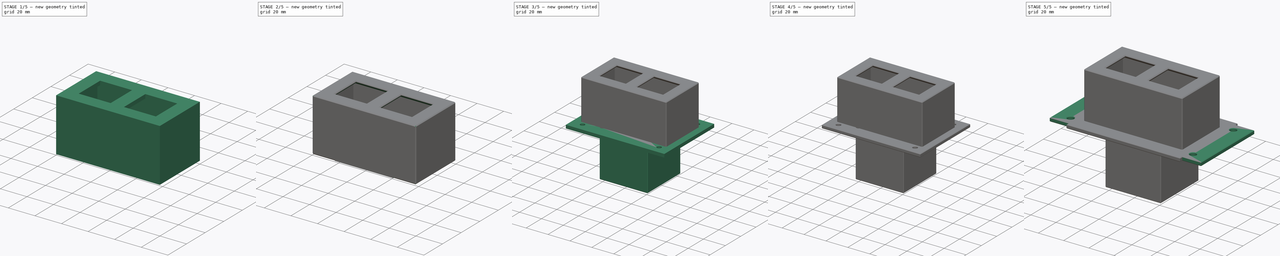
[diagram: build sequence overview — one tinted view per stage of 5, left to right]
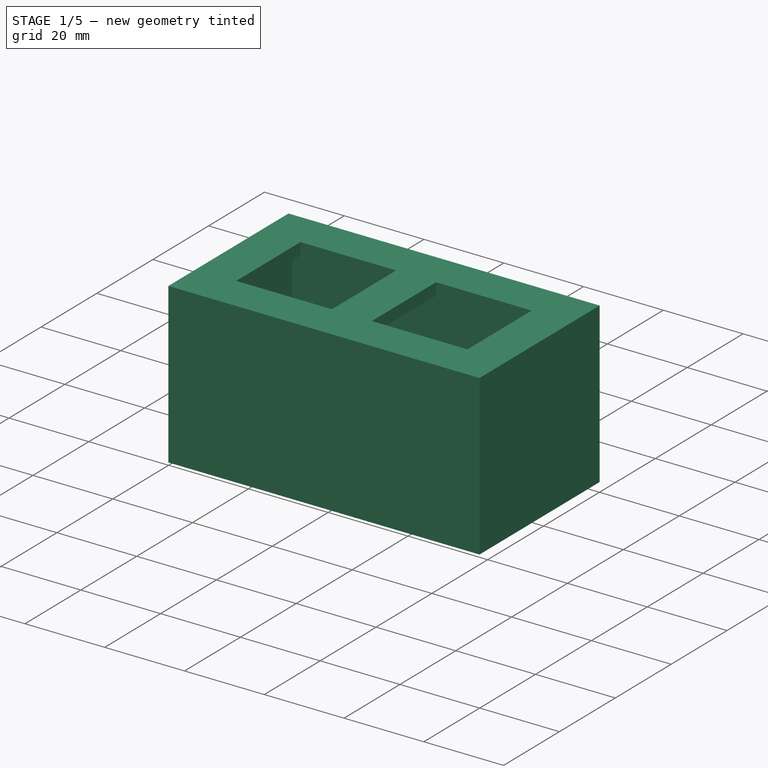
[diagram: stage 1 of 5 — iso view after this stage's code; geometry added in this stage tinted green]
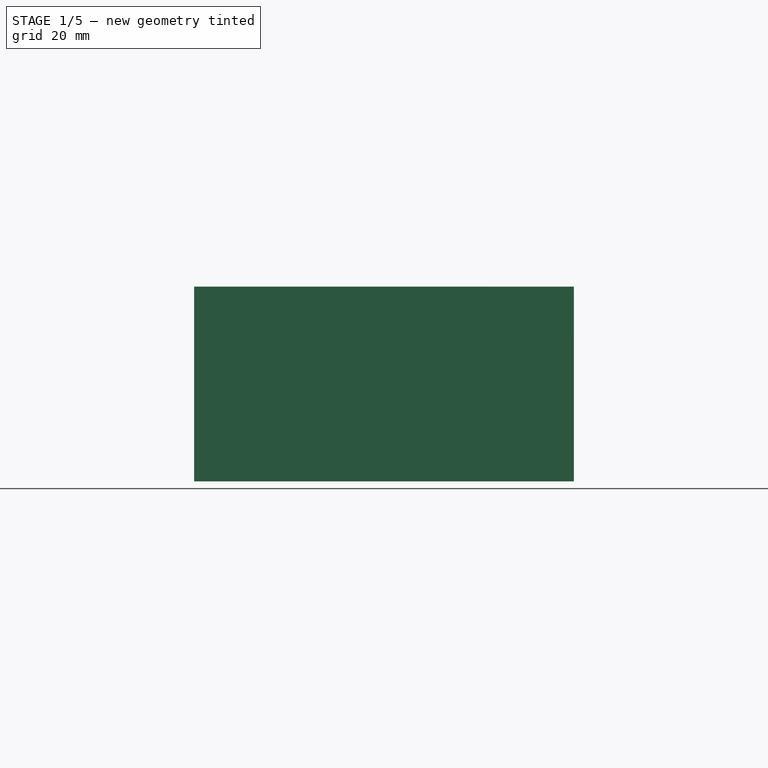
[diagram: stage 1 of 5 — front view after this stage's code; geometry added in this stage tinted green]
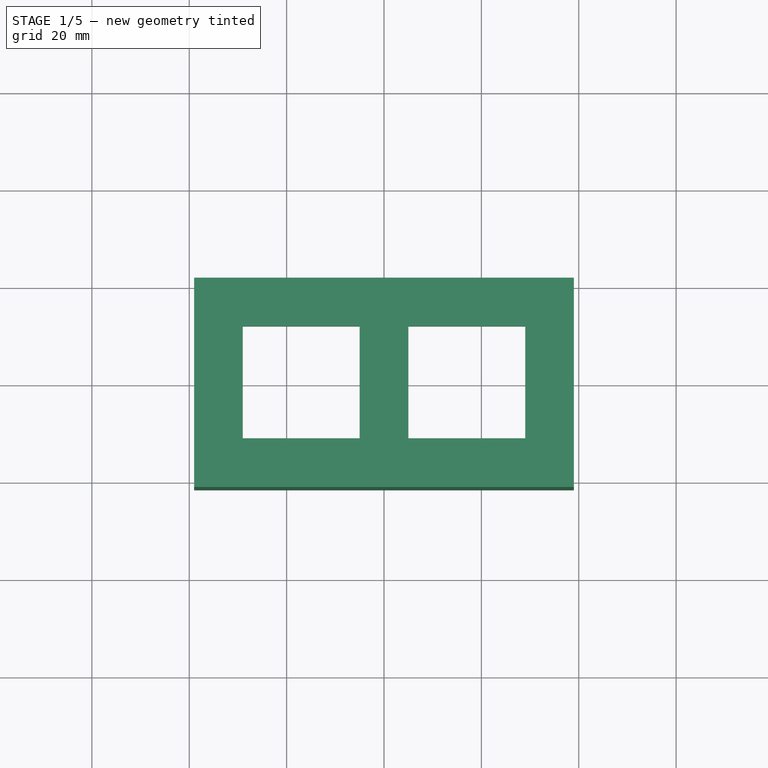
[diagram: stage 1 of 5 — top view after this stage's code; geometry added in this stage tinted green]
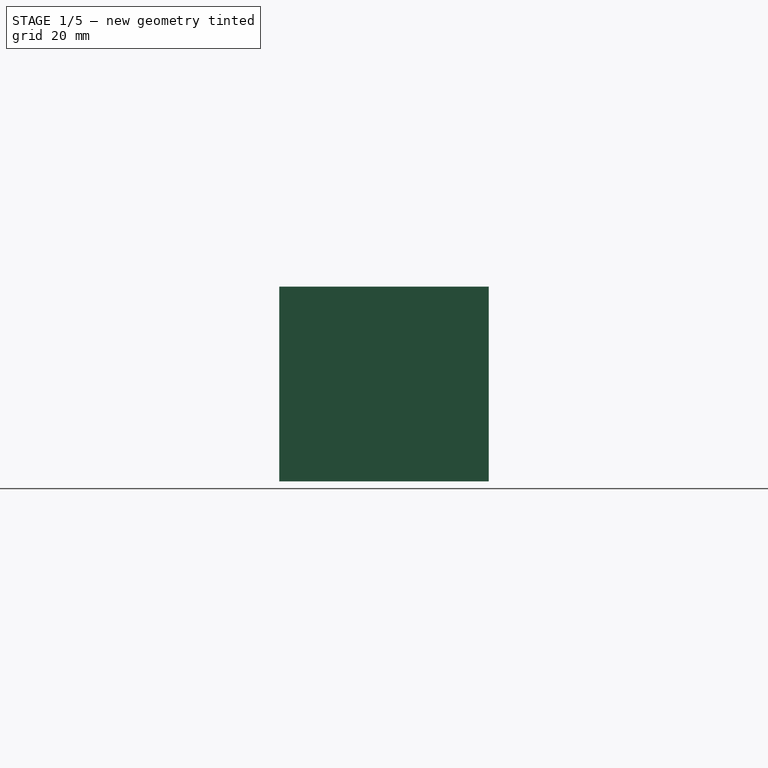
[diagram: stage 1 of 5 — right view after this stage's code; geometry added in this stage tinted green]
FCSTD DOCUMENT  (FreeCAD 0.22R36677 (Git))
Label: top right panel
License: All rights reserved
LicenseURL: http://en.wikipedia.org/wiki/All_rights_reserved
objects: Sketcher::SketchObject×7, PartDesign::Chamfer×7, PartDesign::Pad×6, PartDesign::Body×4, Spreadsheet::Sheet×1, PartDesign::Fillet×1, PartDesign::Thickness×1, PartDesign::Pocket×1
note: 43 computed .brp shape members not serialized (recipe doc carries the construction recipe); baked Part::Feature solids carry a one-line shape summary decoded from their .brp

FEATURE [PartDesign::Body] Body003  label="bottom right002"
  Group = -> [Sketch006,Pad007,Sketch007,Pad008,Chamfer007,Chamfer008]
  Origin = -> Origin003
  Tip = -> Chamfer008
FEATURE [Sketcher::SketchObject] Sketch008
  AttachmentSupport = -> [XY_Plane001]
  FullyConstrained = true
  MapMode = 5
  expr: Constraints[7] = <<q>>.power_socket_width
  expr: Constraints[8] = <<q>>.power_socket_height
  sketch-geometry (8):
    g0: LineSegment StartX=-29 StartY=11.5 StartZ=0 EndX=-29 EndY=-11.5 EndZ=0
    g1: LineSegment StartX=-29 StartY=-11.5 StartZ=0 EndX=-5 EndY=-11.5 EndZ=0
    g2: LineSegment StartX=-5 StartY=-11.5 StartZ=0 EndX=-5 EndY=11.5 EndZ=0
    g3: LineSegment StartX=-5 StartY=11.5 StartZ=0 EndX=-29 EndY=11.5 EndZ=0
    g4: LineSegment StartX=5 StartY=11.5 StartZ=0 EndX=5 EndY=-11.5 EndZ=0
    g5: LineSegment StartX=5 StartY=-11.5 StartZ=0 EndX=29 EndY=-11.5 EndZ=0
    g6: LineSegment StartX=29 StartY=-11.5 StartZ=0 EndX=29 EndY=11.5 EndZ=0
    g7: LineSegment StartX=29 StartY=11.5 StartZ=0 EndX=5 EndY=11.5 EndZ=0
  constraints (21):
    c: Coincident(g0,g1)
    c: Coincident(g1,g2)
    c: Coincident(g2,g3)
    c: Coincident(g3,g0)
    c: Vertical(g0)
    c: Horizontal(g3)
    c: Symmetric(g2,g1,g-1)
    c: DistanceX(g3,g3) = 24
    c: DistanceY(g2,g2) = 23
    c: Coincident(g4,g5)
    c: Coincident(g5,g6)
    c: Coincident(g6,g7)
    c: Coincident(g7,g4)
    c: Horizontal(g7)
    c: DistanceX(g7,g7) = 24
    c: DistanceY(g6,g6) = 23
    c: Symmetric(g4,g4,g-1)
    c: Symmetric(g2,g4,g-2)
    c: DistanceX(g2,g4) = 10
    c: Vertical(g6)
    c: Horizontal(g1)
FEATURE [PartDesign::Pad] Pad009
  Direction = (0,0,1)
  Length = 40
  Length2 = 10
  Profile = -> Sketch001
  ReferenceAxis = -> Sketch001 [N_Axis]
  Suppressed = false
  Type = 0
FEATURE [PartDesign::Thickness] Thickness
  Base = -> Pad009 [Face5]
  BaseFeature = -> Pad009
  Intersection = false
  Join = 0
  Mode = 0
  Reversed = true
  SupportTransform = false
  Suppressed = false
  Value = 3
FEATURE [PartDesign::Pocket] Pocket
  BaseFeature = -> Thickness
  Direction = (0,0,-1)
  Length = 5
  Length2 = 5
  Profile = -> Sketch008
  ReferenceAxis = -> Sketch008 [N_Axis]
  Reversed = true
  Suppressed = false
  Type = 1
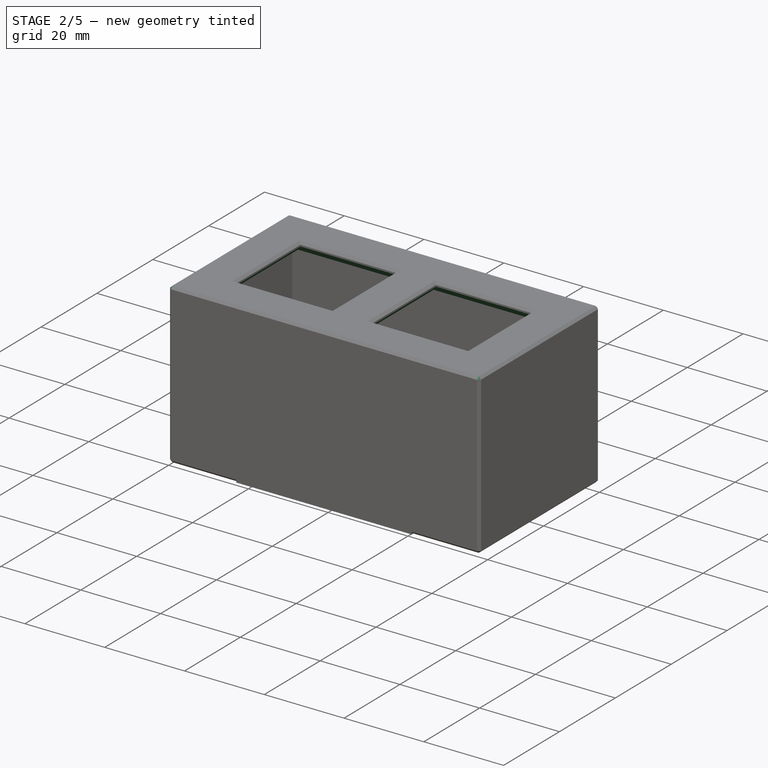
[diagram: stage 2 of 5 — iso view after this stage's code; geometry added in this stage tinted green]
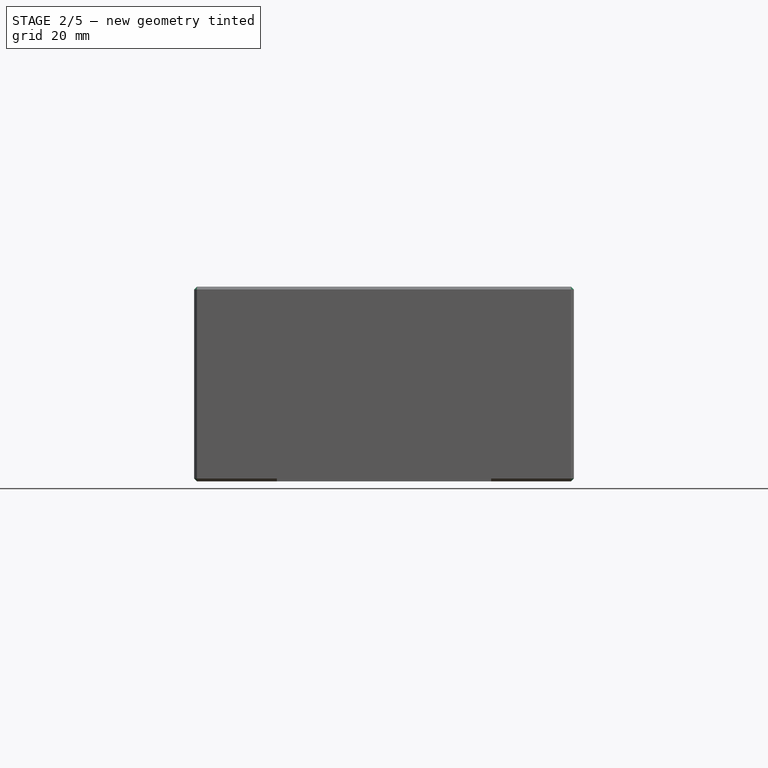
[diagram: stage 2 of 5 — front view after this stage's code; geometry added in this stage tinted green]
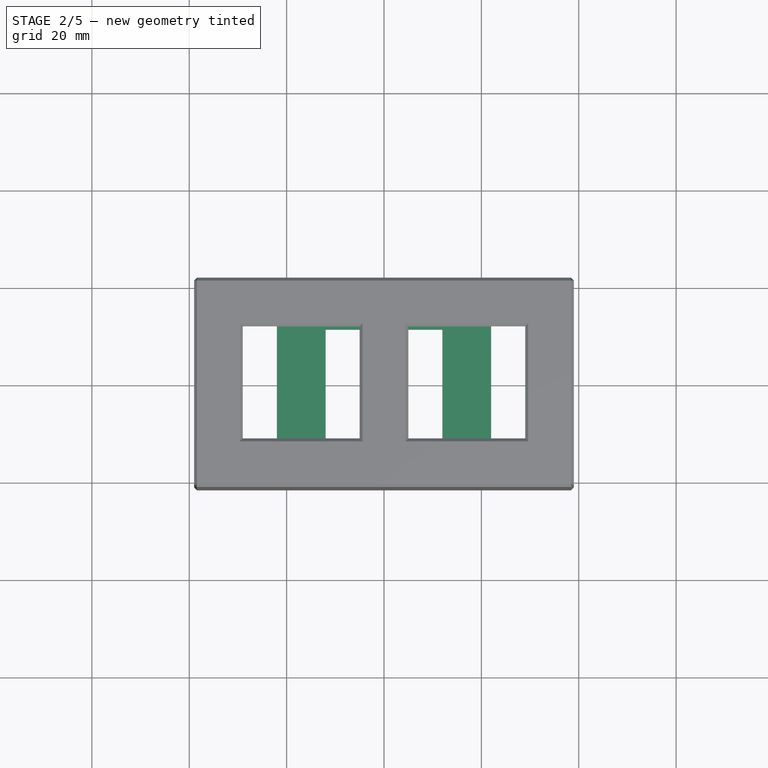
[diagram: stage 2 of 5 — top view after this stage's code; geometry added in this stage tinted green]
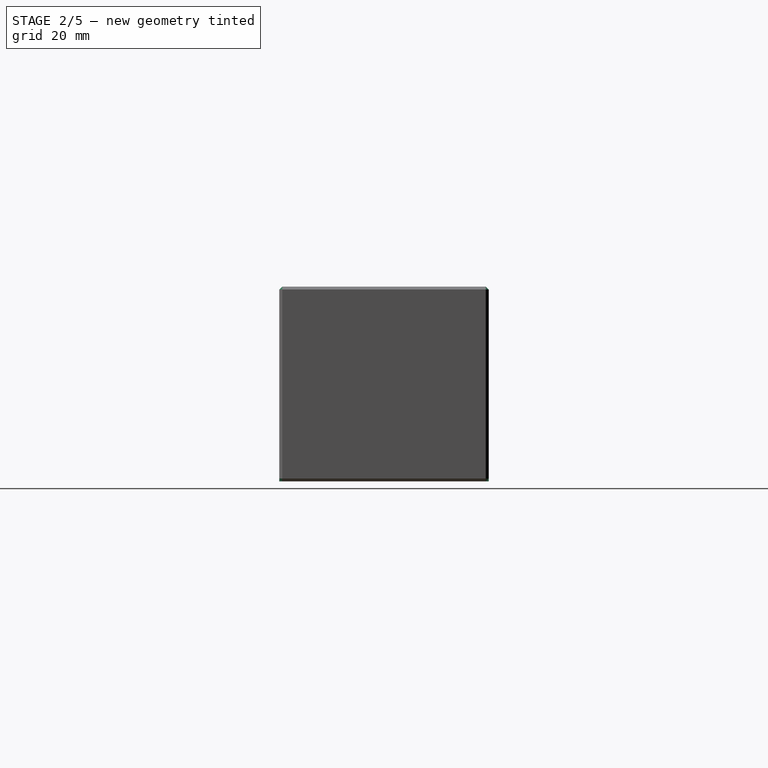
[diagram: stage 2 of 5 — right view after this stage's code; geometry added in this stage tinted green]
FEATURE [PartDesign::Body] Body002  label="bottom right001"
  Group = -> [Sketch003,Pad003,Chamfer003,Sketch004,Pad004,Chamfer004,Fillet001]
  Origin = -> Origin002
  Tip = -> Fillet001
FEATURE [Sketcher::SketchObject] Sketch006
  AttachmentSupport = -> [XY_Plane003]
  FullyConstrained = true
  MapMode = 5
  expr: Constraints[7] = <<q>>.power_socket_width
  expr: Constraints[8] = <<q>>.power_socket_height
  sketch-geometry (8):
    g0: LineSegment StartX=-12 StartY=11.5 StartZ=0 EndX=-12 EndY=-11.5 EndZ=0
    g1: LineSegment StartX=-12 StartY=-11.5 StartZ=0 EndX=12 EndY=-11.5 EndZ=0
    g2: LineSegment StartX=12 StartY=-11.5 StartZ=0 EndX=12 EndY=11.5 EndZ=0
    g3: LineSegment StartX=12 StartY=11.5 StartZ=0 EndX=-12 EndY=11.5 EndZ=0
    g4: LineSegment StartX=-22 StartY=21.5 StartZ=0 EndX=-22 EndY=-21.5 EndZ=0
    g5: LineSegment StartX=-22 StartY=-21.5 StartZ=0 EndX=22 EndY=-21.5 EndZ=0
    g6: LineSegment StartX=22 StartY=-21.5 StartZ=0 EndX=22 EndY=21.5 EndZ=0
    g7: LineSegment StartX=22 StartY=21.5 StartZ=0 EndX=-22 EndY=21.5 EndZ=0
  constraints (21):
    c: Coincident(g0,g1)
    c: Coincident(g1,g2)
    c: Coincident(g2,g3)
    c: Coincident(g3,g0)
    c: Vertical(g0)
    c: Horizontal(g3)
    c: Symmetric(g2,g1,g-1)
    c: DistanceX(g3,g3) = 24
    c: DistanceY(g2,g2) = 23
    c: Coincident(g4,g5)
    c: Coincident(g5,g6)
    c: Coincident(g6,g7)
    c: Coincident(g7,g4)
    c: Vertical(g4)
    c: Vertical(g6)
    c: Horizontal(g5)
    c: Horizontal(g7)
    c: Symmetric(g0,g2,g-1)
    c: Symmetric(g6,g4,g-1)
    c: DistanceX(g2,g6) = 10
    c: DistanceY(g2,g6) = 10
FEATURE [PartDesign::Pad] Pad007
  Direction = (0,0,1)
  Length = 3
  Length2 = 10
  Profile = -> Sketch006
  ReferenceAxis = -> Sketch006 [N_Axis]
  Suppressed = false
  Type = 0
FEATURE [PartDesign::Chamfer] Chamfer009
  Angle = 45
  Base = -> Pocket [Edge44,Edge41,Edge48,Edge33,Edge40,Edge36,Edge46,Edge38]
  BaseFeature = -> Pocket
  ChamferType = 0
  FlipDirection = false
  Size = 2
  Size2 = 1
  SupportTransform = false
  Suppressed = false
  UseAllEdges = false
FEATURE [PartDesign::Chamfer] Chamfer010
  Angle = 45
  Base = -> Chamfer009 [Face27,Face4,Face11,Face10,Face13,Face12]
  BaseFeature = -> Chamfer009
  ChamferType = 0
  FlipDirection = false
  Size = 0.6
  Size2 = 1
  SupportTransform = false
  Suppressed = false
  UseAllEdges = false
FEATURE [PartDesign::Body] Body001  label="bottom right"
  Group = -> [Sketch001,Sketch008,Pad009,Thickness,Pocket,Chamfer009,Chamfer010]
  Origin = -> Origin001
  Tip = -> Chamfer010
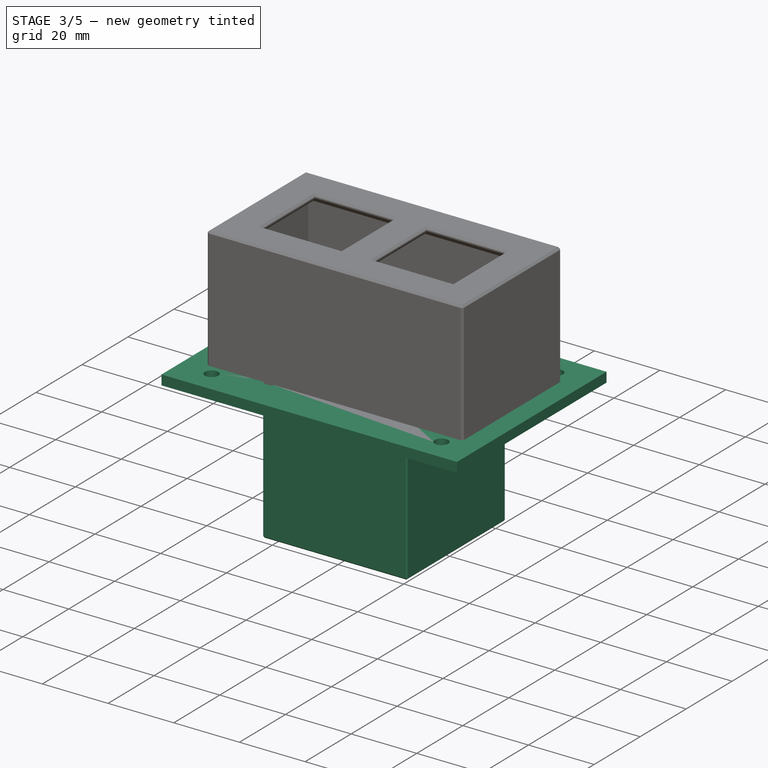
[diagram: stage 3 of 5 — iso view after this stage's code; geometry added in this stage tinted green]
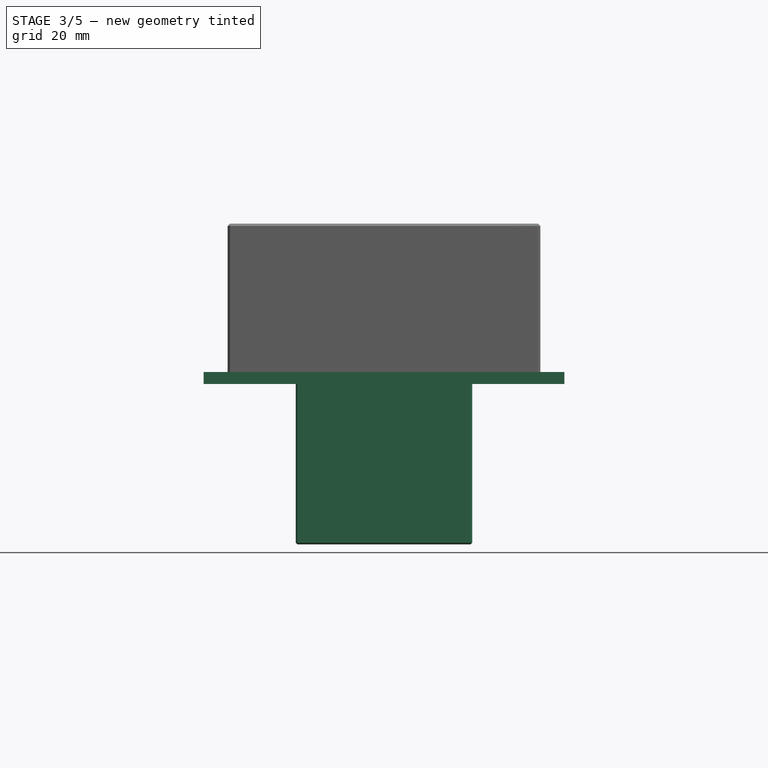
[diagram: stage 3 of 5 — front view after this stage's code; geometry added in this stage tinted green]
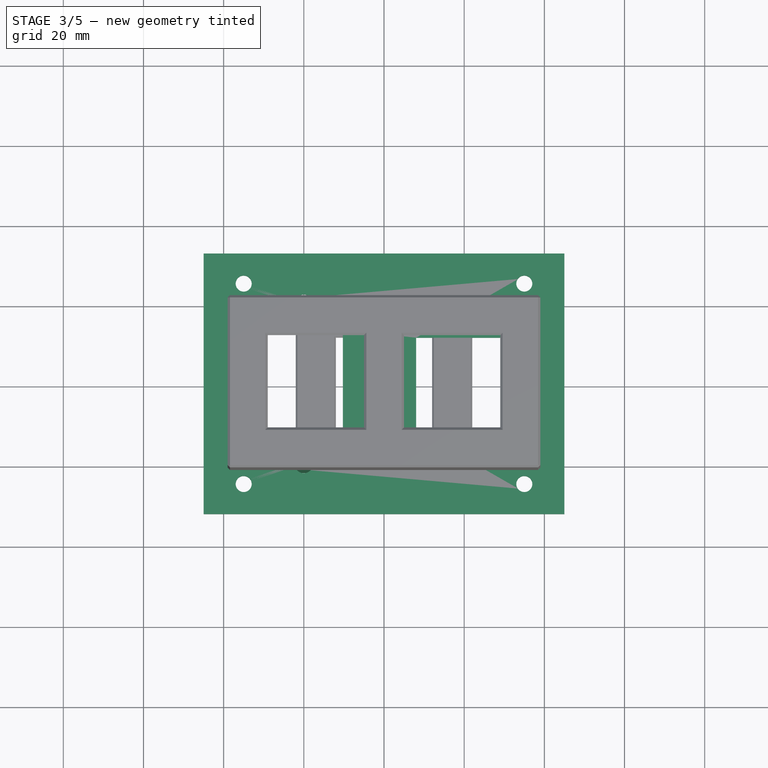
[diagram: stage 3 of 5 — top view after this stage's code; geometry added in this stage tinted green]
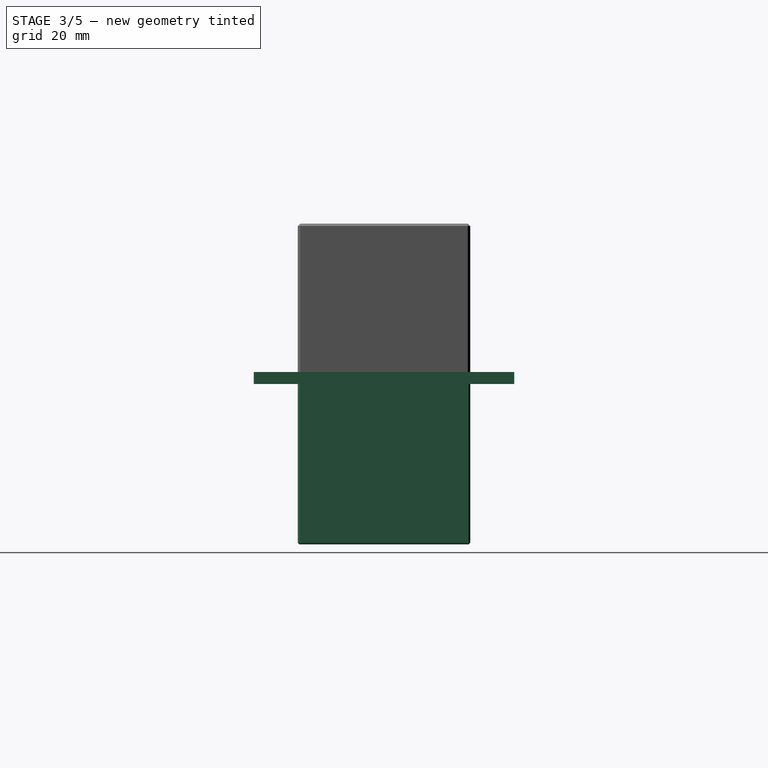
[diagram: stage 3 of 5 — right view after this stage's code; geometry added in this stage tinted green]
FEATURE [PartDesign::Body] Body  label="top right"
  Group = -> [Sketch,Pad,Chamfer]
  Origin = -> Origin
  Tip = -> Chamfer
FEATURE [Sketcher::SketchObject] Sketch001
  AttachmentSupport = -> [XY_Plane001]
  FullyConstrained = true
  MapMode = 5
  sketch-geometry (4):
    g0: LineSegment StartX=-39 StartY=21.5 StartZ=0 EndX=-39 EndY=-21.5 EndZ=0
    g1: LineSegment StartX=-39 StartY=-21.5 StartZ=0 EndX=39 EndY=-21.5 EndZ=0
    g2: LineSegment StartX=39 StartY=-21.5 StartZ=0 EndX=39 EndY=21.5 EndZ=0
    g3: LineSegment StartX=39 StartY=21.5 StartZ=0 EndX=-39 EndY=21.5 EndZ=0
  constraints (11):
    c: Coincident(g0,g1)
    c: Coincident(g1,g2)
    c: Coincident(g2,g3)
    c: Coincident(g3,g0)
    c: Vertical(g0)
    c: Vertical(g2)
    c: Horizontal(g1)
    c: Horizontal(g3)
    c: Symmetric(g0,g2,g-1)
    c: DistanceX(g3,g3) = 78
    c: DistanceY(g2,g2) = 43
FEATURE [Sketcher::SketchObject] Sketch003
  AttachmentSupport = -> [XY_Plane002]
  FullyConstrained = true
  MapMode = 5
  expr: Constraints[15] = <<q>>.power_socket_width
  expr: Constraints[16] = <<q>>.power_inlet_width
  expr: Constraints[17] = <<q>>.power_socket_height
  expr: Constraints[18] = <<q>>.power_inlet_height
  expr: Constraints[21] = <<q>>.power_inlet_screw
  expr: Constraints[22] = <<q>>.power_inlet_c2c
  sketch-geometry (24):
    g0: LineSegment StartX=-29.75 StartY=13.5 StartZ=0 EndX=-29.75 EndY=-13.5 EndZ=0
    g1: LineSegment StartX=-29.75 StartY=-13.5 StartZ=0 EndX=-10.25 EndY=-13.5 EndZ=0
    g2: LineSegment StartX=-10.25 StartY=-13.5 StartZ=0 EndX=-10.25 EndY=13.5 EndZ=0
    g3: LineSegment StartX=-10.25 StartY=13.5 StartZ=0 EndX=-29.75 EndY=13.5 EndZ=0
    g4: LineSegment StartX=8 StartY=11.5 StartZ=0 EndX=8 EndY=-11.5 EndZ=0
    g5: LineSegment StartX=8 StartY=-11.5 StartZ=0 EndX=32 EndY=-11.5 EndZ=0
    g6: LineSegment StartX=32 StartY=-11.5 StartZ=0 EndX=32 EndY=11.5 EndZ=0
    g7: LineSegment StartX=32 StartY=11.5 StartZ=0 EndX=8 EndY=11.5 EndZ=0
    g8: GeomPoint X=-20 Y=-8e-16 Z=0
    g9: Circle CenterX=-20 CenterY=20 CenterZ=0 NormalX=0 NormalY=0 NormalZ=1 AngleXU=0 Radius=2.3
    g10: Circle CenterX=-20 CenterY=-20 CenterZ=0 NormalX=0 NormalY=0 NormalZ=1 AngleXU=0 Radius=2.3
    g11: GeomPoint X=20 Y=8e-16 Z=0
    g12: LineSegment StartX=-45 StartY=32.5 StartZ=0 EndX=-45 EndY=-32.5 EndZ=0
    g13: LineSegment StartX=-45 StartY=-32.5 StartZ=0 EndX=45 EndY=-32.5 EndZ=0
    g14: LineSegment StartX=45 StartY=-32.5 StartZ=0 EndX=45 EndY=32.5 EndZ=0
    g15: LineSegment StartX=45 StartY=32.5 StartZ=0 EndX=-45 EndY=32.5 EndZ=0
    g16: LineSegment StartX=-35 StartY=25 StartZ=0 EndX=-35 EndY=-25 EndZ=0
    g17: LineSegment StartX=-35 StartY=-25 StartZ=0 EndX=35 EndY=-25 EndZ=0
    g18: LineSegment StartX=35 StartY=-25 StartZ=0 EndX=35 EndY=25 EndZ=0
    g19: LineSegment StartX=35 StartY=25 StartZ=0 EndX=-35 EndY=25 EndZ=0
    g20: Circle CenterX=35 CenterY=-25 CenterZ=0 NormalX=0 NormalY=0 NormalZ=1 AngleXU=0 Radius=2
    g21: Circle CenterX=35 CenterY=25 CenterZ=0 NormalX=0 NormalY=0 NormalZ=1 AngleXU=0 Radius=2
    g22: Circle CenterX=-35 CenterY=25 CenterZ=0 NormalX=0 NormalY=0 NormalZ=1 AngleXU=0 Radius=2
    g23: Circle CenterX=-35 CenterY=-25 CenterZ=0 NormalX=0 NormalY=0 NormalZ=1 AngleXU=0 Radius=2
  constraints (58):
    c: Coincident(g0,g1)
    c: Coincident(g1,g2)
    c: Coincident(g2,g3)
    c: Coincident(g3,g0)
    c: Vertical(g0)
    c: Horizontal(g1)
    c: Horizontal(g3)
    c: Coincident(g4,g5)
    c: Coincident(g5,g6)
    c: Coincident(g6,g7)
    c: Coincident(g7,g4)
    c: Vertical(g4)
    c: Horizontal(g7)
    c: Symmetric(g6,g5,g-1)
    c: Symmetric(g2,g1,g-1)
    c: DistanceX(g7,g7) = 24
    c: DistanceY(g0,g0) = 27
    c: DistanceY(g6,g6) = 23
    c: DistanceX(g3,g3) = 19.5
    c: Symmetric(g0,g2,g8)
    c: Equal(g9,g10)
    c: Diameter(g9) = 4.6
    c: DistanceY(g10,g9) = 40
    c: Symmetric(g9,g10,g8)
    c: Symmetric(g4,g6,g11)
    c: Symmetric(g8,g11,g-1)
    c: DistanceX(g8,g11) = 40
    c: Coincident(g12,g13)
    c: Coincident(g13,g14)
    c: Coincident(g14,g15)
    c: Coincident(g15,g12)
    c: Vertical(g12)
    c: Vertical(g14)
    c: Horizontal(g13)
    c: Horizontal(g15)
    c: Symmetric(g12,g14,g-1)
    c: Coincident(g16,g17)
    c: Coincident(g17,g18)
    c: Coincident(g18,g19)
    c: Coincident(g19,g16)
    c: Vertical(g16)
    c: Vertical(g18)
    c: Horizontal(g17)
    c: Horizontal(g19)
    c: Symmetric(g16,g18,g-1)
    c: Equal(g22,g23)
    c: Equal(g22,g20)
    c: Equal(g22,g21)
    c: Diameter(g22) = 4
    c: Coincident(g18,g21)
    c: Coincident(g20,g17)
    c: Coincident(g23,g16)
    c: Coincident(g16,g22)
    c: DistanceX(g17,g17) = 70
    c: DistanceY(g18,g18) = 50
    c: Vertical(g9,g8)
    c: DistanceX(g13,g13) = 90
    c: DistanceY(g14,g14) = 65
FEATURE [PartDesign::Pad] Pad003
  Direction = (0,0,1)
  Length = 3
  Length2 = 10
  Profile = -> Sketch003
  ReferenceAxis = -> Sketch003 [N_Axis]
  Suppressed = false
  Type = 0
FEATURE [Sketcher::SketchObject] Sketch007
  AttachmentSupport = -> [Pad007]
  ExternalGeometry = -> [Pad007]
  FullyConstrained = true
  MapMode = 5
  Placement = pos=(0,0,0) rot=(1,0,0;3.14159rad)
  sketch-geometry (8):
    g0: LineSegment StartX=-19 StartY=18.5 StartZ=0 EndX=-19 EndY=-18.5 EndZ=0
    g1: LineSegment StartX=-19 StartY=-18.5 StartZ=0 EndX=19 EndY=-18.5 EndZ=0
    g2: LineSegment StartX=19 StartY=-18.5 StartZ=0 EndX=19 EndY=18.5 EndZ=0
    g3: LineSegment StartX=19 StartY=18.5 StartZ=0 EndX=-19 EndY=18.5 EndZ=0
    g4: LineSegment StartX=-22 StartY=21.5 StartZ=0 EndX=-22 EndY=-21.5 EndZ=0
    g5: LineSegment StartX=-22 StartY=-21.5 StartZ=0 EndX=22 EndY=-21.5 EndZ=0
    g6: LineSegment StartX=22 StartY=-21.5 StartZ=0 EndX=22 EndY=21.5 EndZ=0
    g7: LineSegment StartX=22 StartY=21.5 StartZ=0 EndX=-22 EndY=21.5 EndZ=0
  constraints (21):
    c: Coincident(g0,g1)
    c: Coincident(g1,g2)
    c: Coincident(g2,g3)
    c: Coincident(g3,g0)
    c: Vertical(g0)
    c: Vertical(g2)
    c: Horizontal(g1)
    c: Horizontal(g3)
    c: DistanceX(g1,g-4) = 3
    c: DistanceY(g-4,g1) = 3
    c: Symmetric(g0,g2,g-1)
    c: Coincident(g4,g5)
    c: Coincident(g5,g6)
    c: Coincident(g6,g7)
    c: Coincident(g7,g4)
    c: Vertical(g4)
    c: Vertical(g6)
    c: Horizontal(g5)
    c: Horizontal(g7)
    c: Symmetric(g4,g6,g-1)
    c: Coincident(g5,g-4)
FEATURE [PartDesign::Pad] Pad008
  BaseFeature = -> Pad007
  Direction = (0,0,-1)
  Length = 40
  Length2 = 10
  Profile = -> Sketch007
  ReferenceAxis = -> Sketch007 [N_Axis]
  Refine = true
  Suppressed = false
  Type = 0
FEATURE [PartDesign::Chamfer] Chamfer007
  Angle = 45
  Base = -> Pad008 [Edge19,Edge20,Edge18,Edge17]
  BaseFeature = -> Pad008
  ChamferType = 0
  FlipDirection = false
  Size = 1.9
  Size2 = 1
  SupportTransform = false
  Suppressed = false
  UseAllEdges = false
FEATURE [PartDesign::Chamfer] Chamfer008
  Angle = 45
  Base = -> Chamfer007 [Face14,Face17,Face15,Face16,Face18,Face19]
  BaseFeature = -> Chamfer007
  ChamferType = 0
  FlipDirection = false
  Size = 0.4
  Size2 = 1
  SupportTransform = false
  Suppressed = false
  UseAllEdges = false
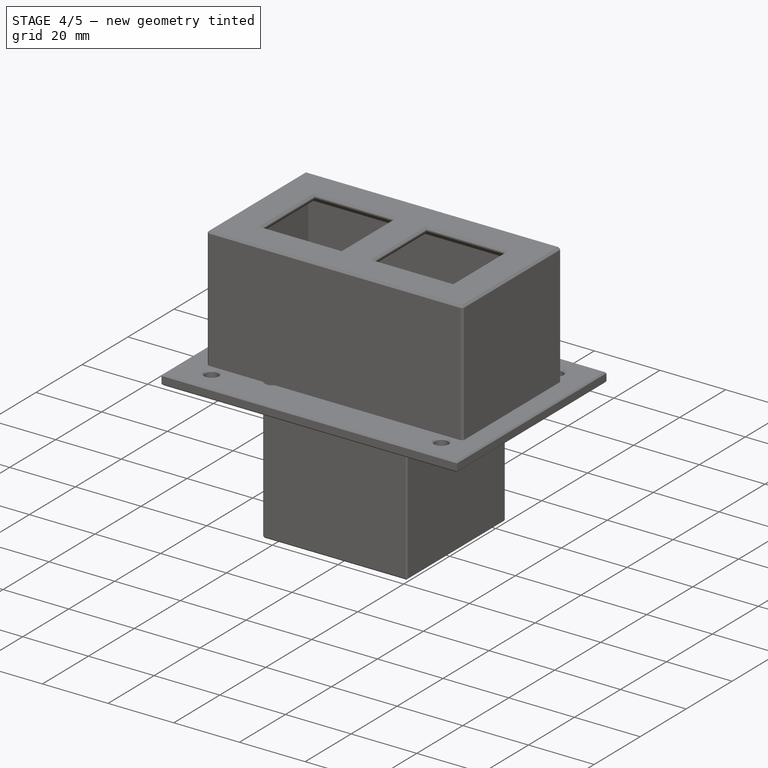
[diagram: stage 4 of 5 — iso view after this stage's code; geometry added in this stage tinted green]
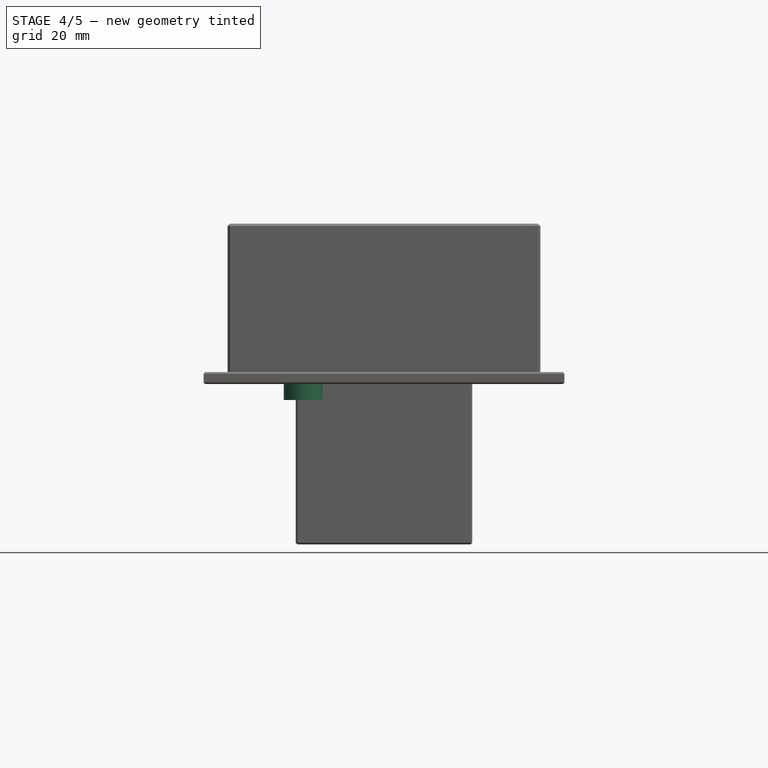
[diagram: stage 4 of 5 — front view after this stage's code; geometry added in this stage tinted green]
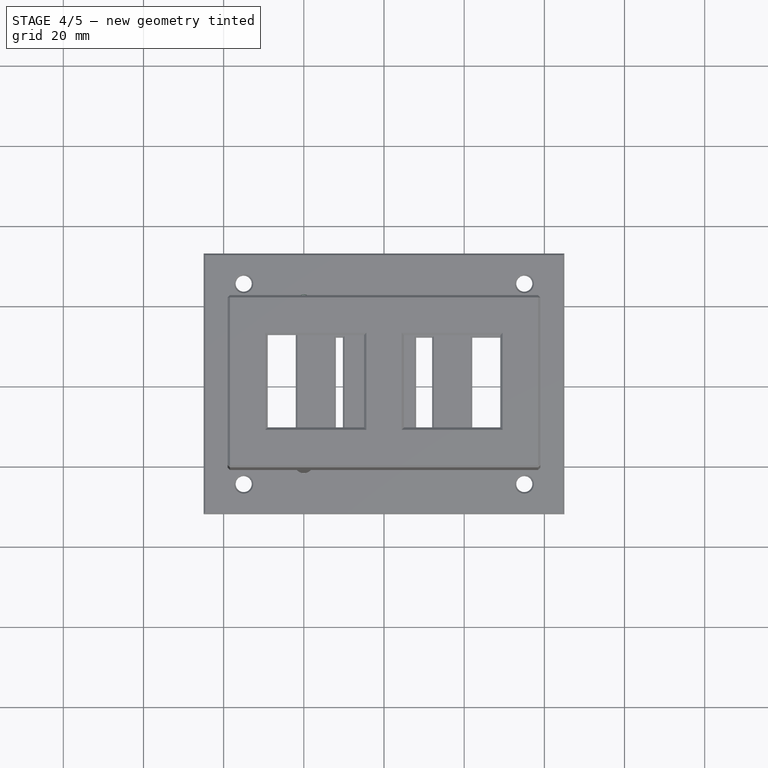
[diagram: stage 4 of 5 — top view after this stage's code; geometry added in this stage tinted green]
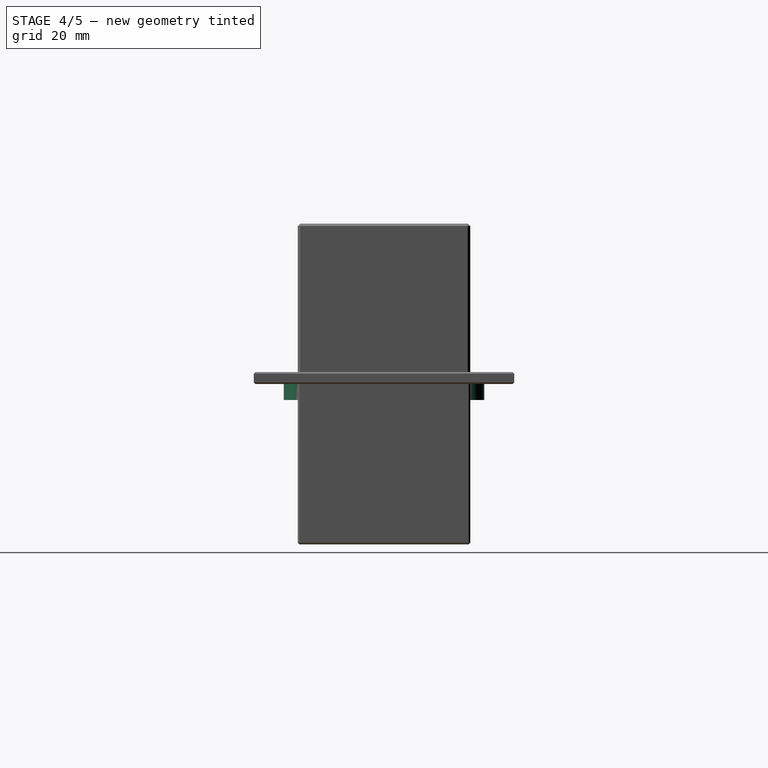
[diagram: stage 4 of 5 — right view after this stage's code; geometry added in this stage tinted green]
FEATURE [PartDesign::Chamfer] Chamfer003
  Angle = 45
  Base = -> Pad003 [Edge27,Edge30,Edge33,Edge35]
  BaseFeature = -> Pad003
  ChamferType = 0
  FlipDirection = false
  Size = 1.9
  Size2 = 1
  SupportTransform = false
  Suppressed = false
  UseAllEdges = false
FEATURE [Sketcher::SketchObject] Sketch004
  AttachmentSupport = -> [Chamfer003]
  ExternalGeometry = -> [Chamfer003]
  FullyConstrained = true
  MapMode = 5
  Placement = pos=(0,0,3) rot=(0,0,1;0rad)
  sketch-geometry (4):
    g0: Circle CenterX=-20 CenterY=-20 CenterZ=0 NormalX=0 NormalY=0 NormalZ=1 AngleXU=0 Radius=5
    g1: Circle CenterX=-20 CenterY=-20 CenterZ=0 NormalX=0 NormalY=0 NormalZ=1 AngleXU=0 Radius=2.3
    g2: Circle CenterX=-20 CenterY=20 CenterZ=0 NormalX=0 NormalY=0 NormalZ=1 AngleXU=0 Radius=5
    g3: Circle CenterX=-20 CenterY=20 CenterZ=0 NormalX=0 NormalY=0 NormalZ=1 AngleXU=0 Radius=2.3
  constraints (8):
    c: Coincident(g0,g-4)
    c: Coincident(g1,g0)
    c: Coincident(g2,g-3)
    c: Coincident(g3,g2)
    c: Equal(g3,g-3)
    c: Equal(g-4,g1)
    c: Equal(g0,g2)
    c: Diameter(g2) = 10
FEATURE [PartDesign::Pad] Pad004
  BaseFeature = -> Chamfer003
  Direction = (0,0,1)
  Length = 7
  Length2 = 10
  Profile = -> Sketch004
  ReferenceAxis = -> Sketch004 [N_Axis]
  Reversed = true
  Suppressed = false
  Type = 0
FEATURE [PartDesign::Chamfer] Chamfer004
  Angle = 45
  Base = -> Pad004 [Edge40,Edge39,Edge41,Edge42,Edge34,Edge32,Edge33,Edge35,Edge47,Edge44,Edge36,Edge38,Face4]
  BaseFeature = -> Pad004
  ChamferType = 0
  FlipDirection = false
  Size = 0.4
  Size2 = 1
  SupportTransform = false
  Suppressed = false
  UseAllEdges = false
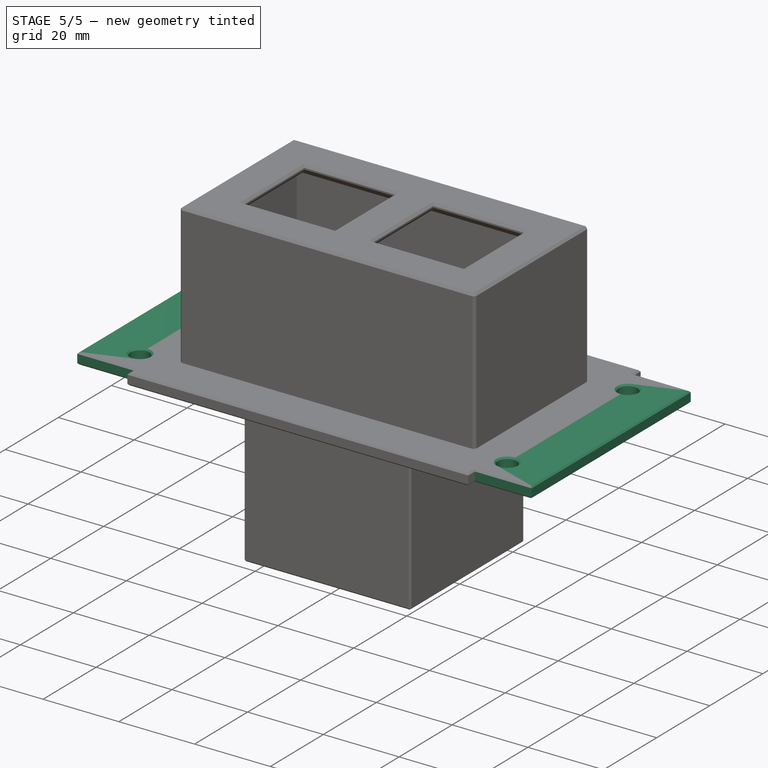
[diagram: stage 5 of 5 — iso view after this stage's code; geometry added in this stage tinted green]
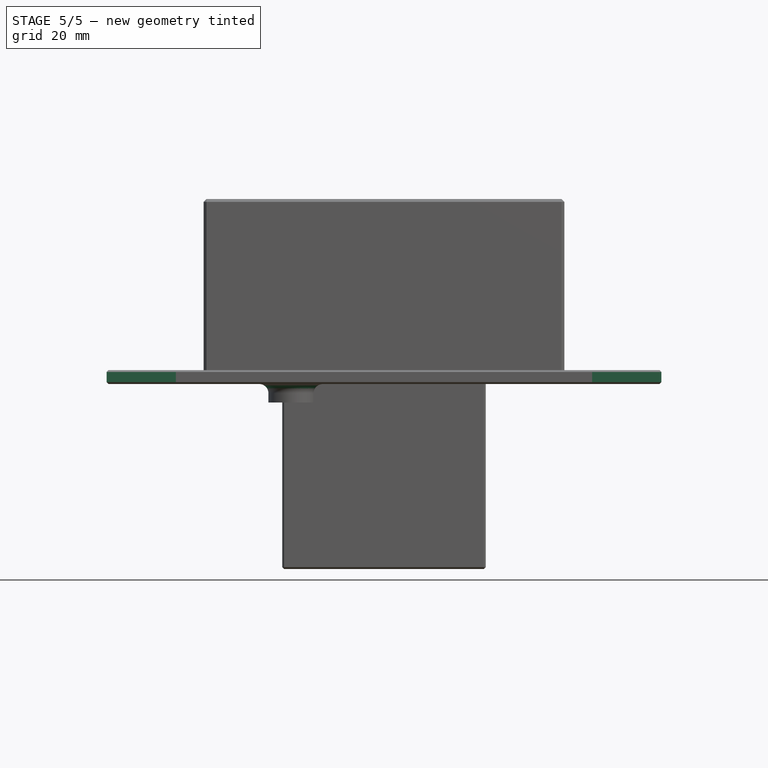
[diagram: stage 5 of 5 — front view after this stage's code; geometry added in this stage tinted green]
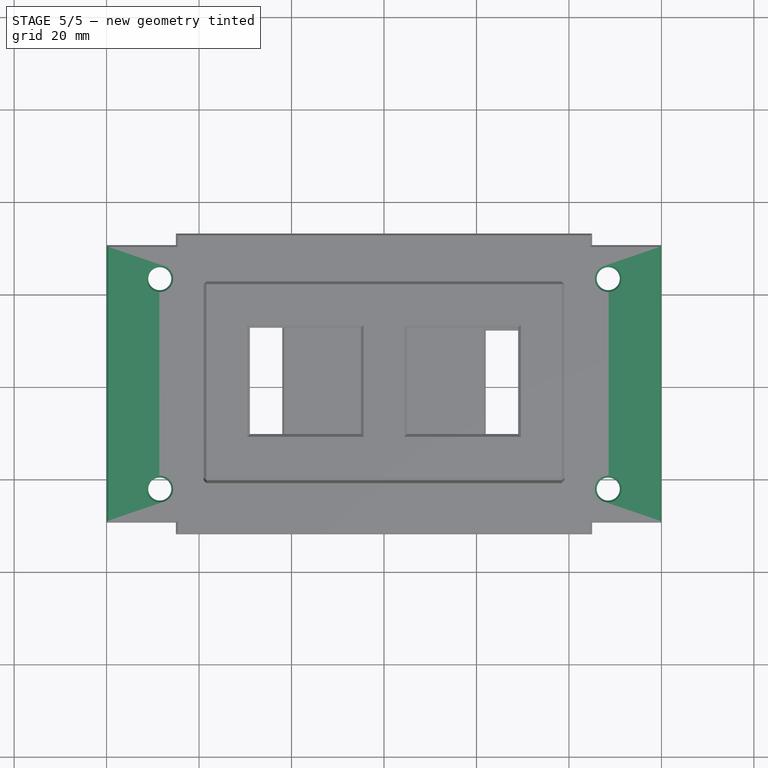
[diagram: stage 5 of 5 — top view after this stage's code; geometry added in this stage tinted green]
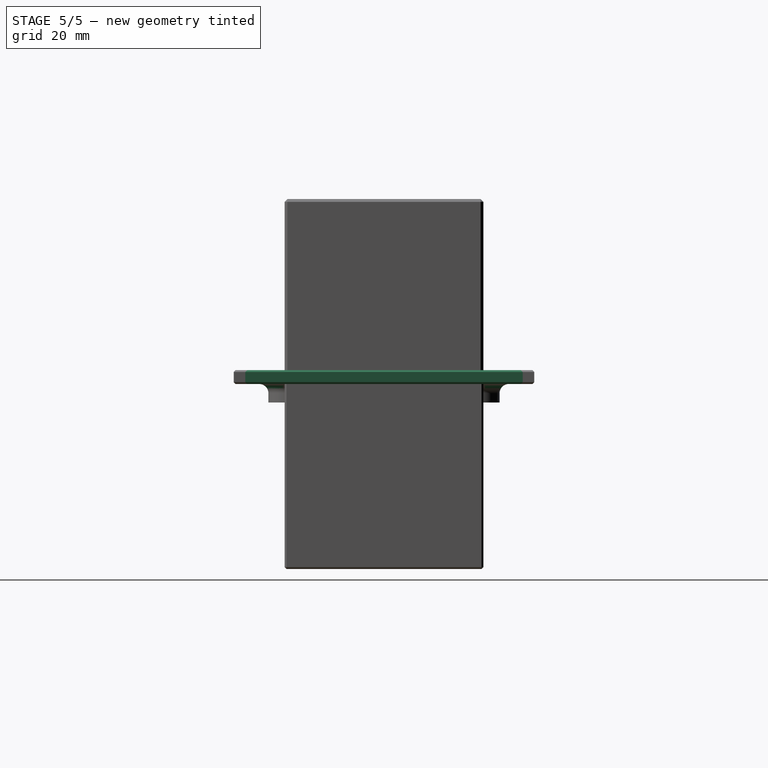
[diagram: stage 5 of 5 — right view after this stage's code; geometry added in this stage tinted green]
FEATURE [Spreadsheet::Sheet] Spreadsheet  label="q"
  cells = A1='right width; B1(right_width)=285; A2='right depth; B2(right_depth)=125; A3='right height; B3(right_height)=80; A5='switch width; B5(switch_width)=22; A6='switch depth; B6(switch_depth)=31; A7='wall; B7(wall)=3; A9='power inlet width; B9(power_inlet_width)=27; C9='c2c is across this dimension; A10='power inlet height; B10(power_inlet_height)=19.5; A11='power inlet screw; B11(power_inlet_screw)=4.6; C11='for a threaded insert; A12='power inlet c2c; B12(power_inlet_c2c)=40; A14='power socket width; B14(power_socket_width)=24; A15='power socket height; B15(power_socket_height)=23; A17='left width; A18='left depth; A19='left height
FEATURE [Sketcher::SketchObject] Sketch
  AttachmentSupport = -> [XY_Plane]
  FullyConstrained = true
  MapMode = 5
  expr: Constraints[18] = <<q>>.switch_depth
  expr: Constraints[19] = <<q>>.switch_width
  sketch-geometry (20):
    g0: LineSegment StartX=-37 StartY=15.5 StartZ=0 EndX=-37 EndY=-15.5 EndZ=0
    g1: LineSegment StartX=-37 StartY=-15.5 StartZ=0 EndX=-15 EndY=-15.5 EndZ=0
    g2: LineSegment StartX=-15 StartY=-15.5 StartZ=0 EndX=-15 EndY=15.5 EndZ=0
    g3: LineSegment StartX=-15 StartY=15.5 StartZ=0 EndX=-37 EndY=15.5 EndZ=0
    g4: LineSegment StartX=15 StartY=15.5 StartZ=0 EndX=15 EndY=-15.5 EndZ=0
    g5: LineSegment StartX=15 StartY=-15.5 StartZ=0 EndX=37 EndY=-15.5 EndZ=0
    g6: LineSegment StartX=37 StartY=-15.5 StartZ=0 EndX=37 EndY=15.5 EndZ=0
    g7: LineSegment StartX=37 StartY=15.5 StartZ=0 EndX=15 EndY=15.5 EndZ=0
    g8: LineSegment StartX=-60 StartY=30 StartZ=0 EndX=-60 EndY=-30 EndZ=0
    g9: LineSegment StartX=-60 StartY=-30 StartZ=0 EndX=60 EndY=-30 EndZ=0
    g10: LineSegment StartX=60 StartY=-30 StartZ=0 EndX=60 EndY=30 EndZ=0
    g11: LineSegment StartX=60 StartY=30 StartZ=0 EndX=-60 EndY=30 EndZ=0
    g12: Circle CenterX=-48.5 CenterY=22.75 CenterZ=0 NormalX=0 NormalY=0 NormalZ=1 AngleXU=0 Radius=2.5
    g13: Circle CenterX=48.5 CenterY=22.75 CenterZ=0 NormalX=0 NormalY=0 NormalZ=1 AngleXU=0 Radius=2.5
    g14: LineSegment StartX=-48.5 StartY=22.75 StartZ=0 EndX=-48.5 EndY=-22.75 EndZ=0
    g15: LineSegment StartX=-48.5 StartY=-22.75 StartZ=0 EndX=48.5 EndY=-22.75 EndZ=0
    g16: LineSegment StartX=48.5 StartY=-22.75 StartZ=0 EndX=48.5 EndY=22.75 EndZ=0
    g17: LineSegment StartX=48.5 StartY=22.75 StartZ=0 EndX=-48.5 EndY=22.75 EndZ=0
    g18: Circle CenterX=-48.5 CenterY=-22.75 CenterZ=0 NormalX=0 NormalY=0 NormalZ=1 AngleXU=0 Radius=2.5
    g19: Circle CenterX=48.5 CenterY=-22.75 CenterZ=0 NormalX=0 NormalY=0 NormalZ=1 AngleXU=0 Radius=2.5
  constraints (51):
    c: Coincident(g0,g1)
    c: Coincident(g1,g2)
    c: Coincident(g2,g3)
    c: Coincident(g3,g0)
    c: Vertical(g0)
    c: Horizontal(g1)
    c: Horizontal(g3)
    c: Coincident(g4,g5)
    c: Coincident(g5,g6)
    c: Coincident(g6,g7)
    c: Coincident(g7,g4)
    c: Vertical(g4)
    c: Vertical(g6)
    c: Horizontal(g5)
    c: Horizontal(g7)
    c: Equal(g2,g4)
    c: Equal(g7,g3)
    c: Symmetric(g2,g1,g-1)
    c: DistanceY(g2,g2) = 31
    c: DistanceX(g3,g3) = 22
    c: Symmetric(g2,g4,g-2)
    c: Coincident(g8,g9)
    c: Coincident(g9,g10)
    c: Coincident(g11,g8)
    c: Vertical(g8)
    c: Vertical(g10)
    c: Horizontal(g9)
    c: Horizontal(g11)
    c: Symmetric(g9,g8,g-1)
    c: Equal(g12,g13)
    c: Diameter(g12) = 5
    c: Symmetric(g12,g13,g-2)
    c: Coincident(g11,g10)
    c: DistanceX(g2,g4) = 30
    c: DistanceX(g9,g9) = 120
    c: DistanceY(g10,g10) = 60
    c: Coincident(g14,g15)
    c: Coincident(g15,g16)
    c: Coincident(g16,g17)
    c: Coincident(g17,g14)
    c: Vertical(g14)
    c: Vertical(g16)
    c: Horizontal(g15)
    c: Horizontal(g17)
    c: Symmetric(g14,g16,g-1)
    c: Symmetric(g6,g10,g16)
    c: Equal(g18,g19)
    c: Diameter(g18) = 5
    c: Symmetric(g18,g19,g-2)
    c: Coincident(g18,g14)
    c: Coincident(g12,g14)
FEATURE [PartDesign::Pad] Pad
  Direction = (0,0,1)
  Length = 3
  Length2 = 10
  Profile = -> Sketch
  ReferenceAxis = -> Sketch [N_Axis]
  Suppressed = false
  Type = 0
FEATURE [PartDesign::Chamfer] Chamfer
  Angle = 45
  Base = -> Pad [Face18,Face17]
  BaseFeature = -> Pad
  ChamferType = 0
  FlipDirection = false
  Size = 0.4
  Size2 = 1
  SupportTransform = false
  Suppressed = false
  UseAllEdges = false
FEATURE [PartDesign::Fillet] Fillet001
  Base = -> Chamfer004 [Edge44,Edge45]
  BaseFeature = -> Chamfer004
  Radius = 2
  SupportTransform = false
  Suppressed = false
  UseAllEdges = false
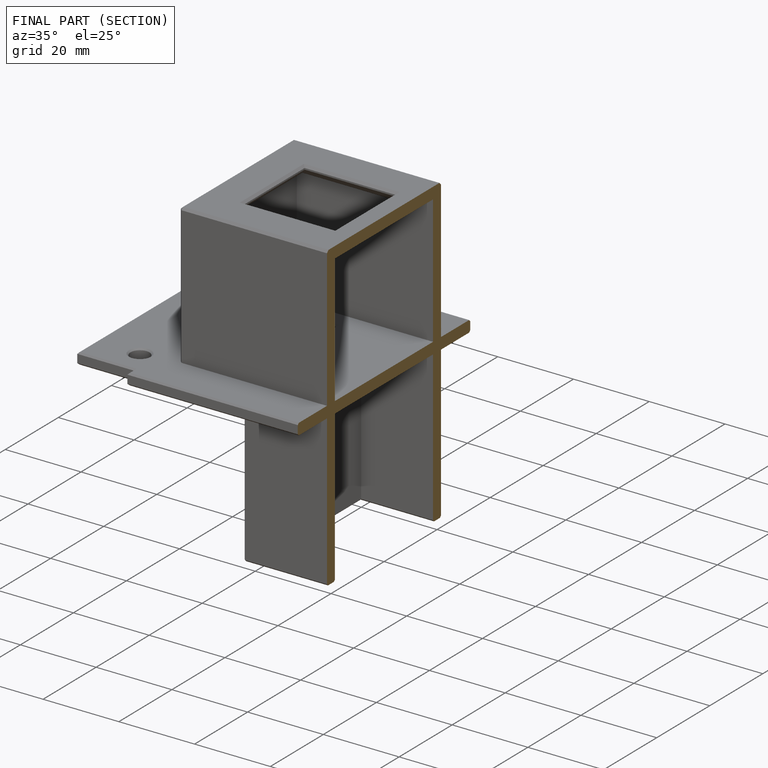
[diagram: finished part — half-section view (interior)]
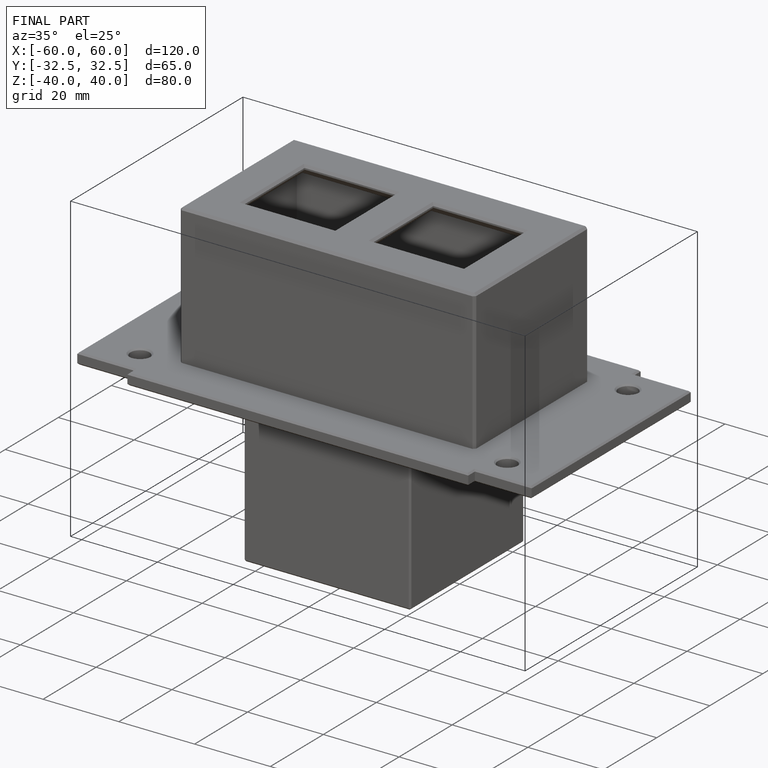
[diagram: finished part — iso view with bounding-box wireframe]
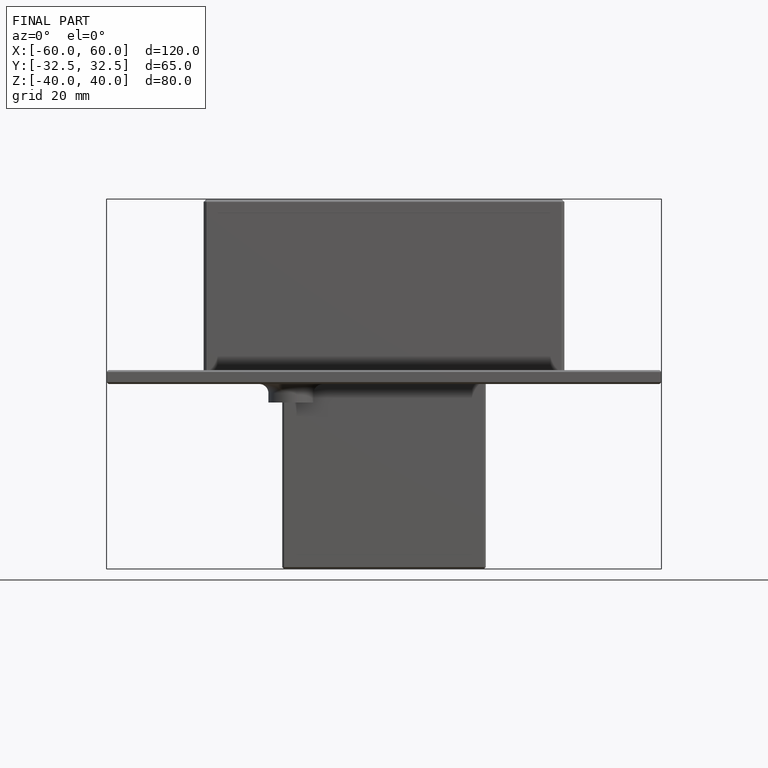
[diagram: finished part — front view with bounding-box wireframe]
